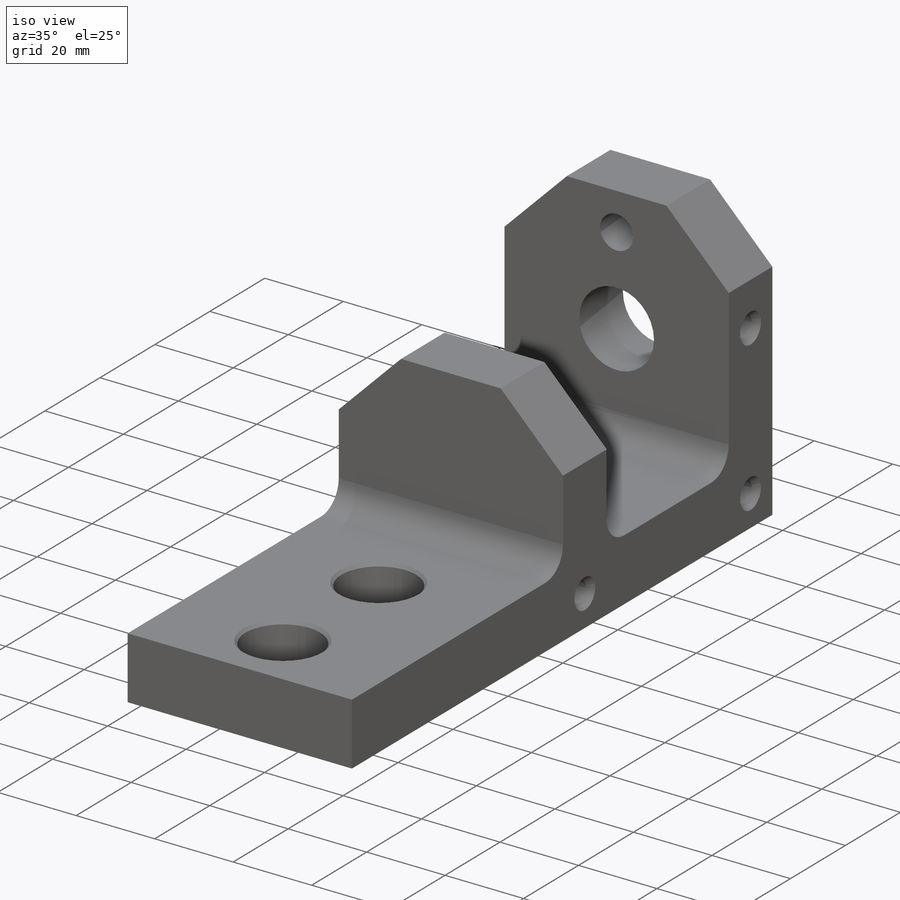
[diagram: iso view]
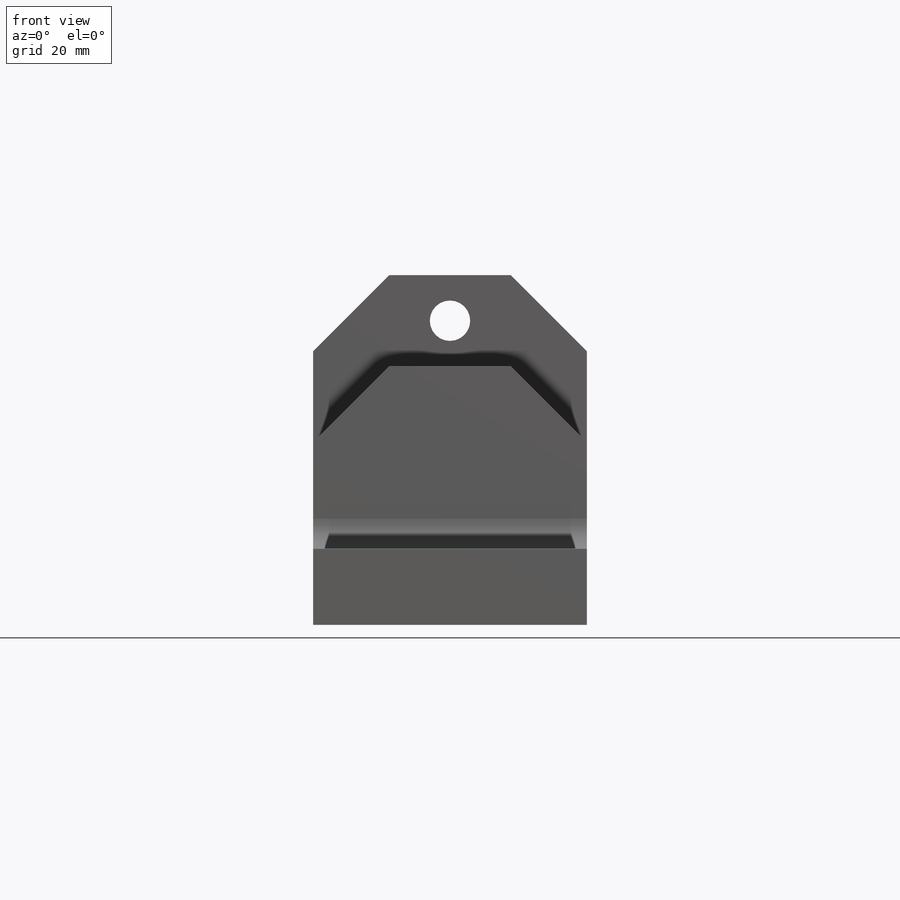
[diagram: front view]
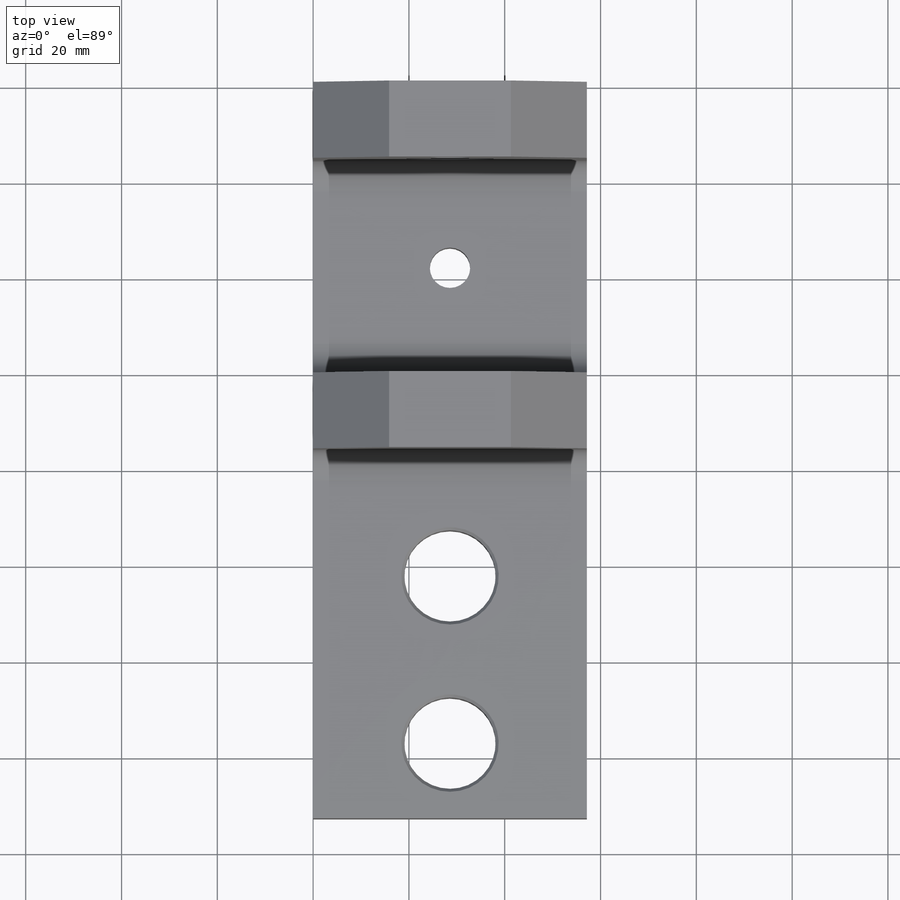
[diagram: top view]
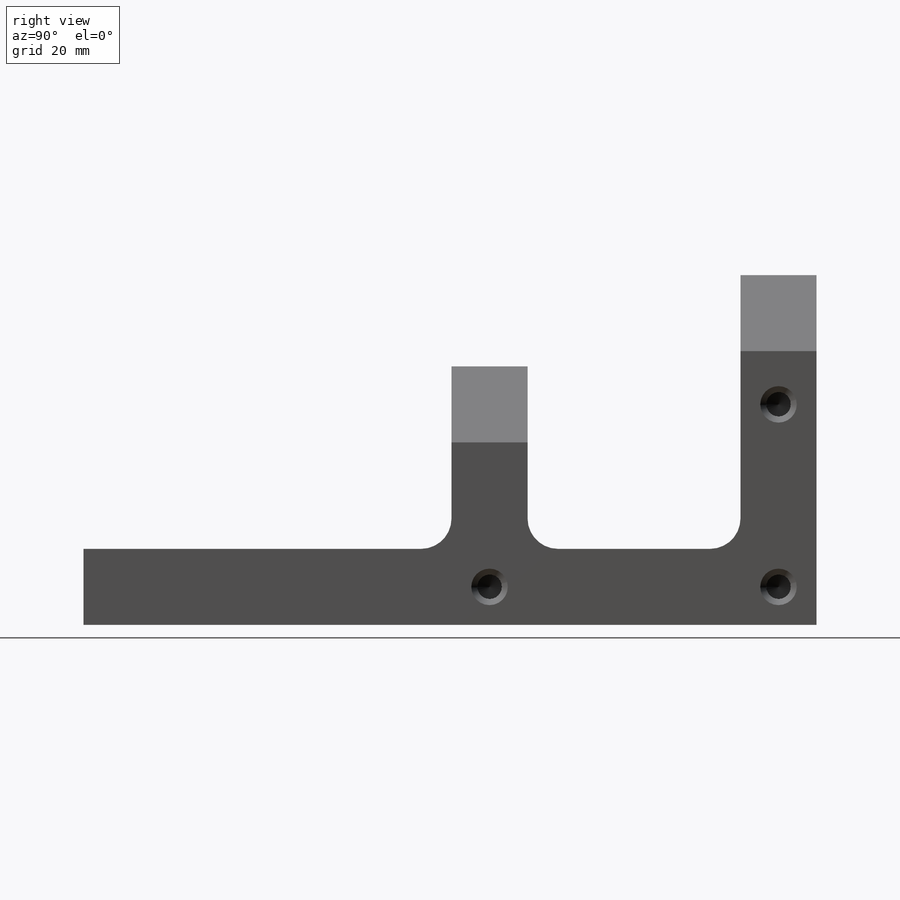
[diagram: right view]
SOLIDWORKS PART (.sldprt)
format: sldprt  version: not decoded by parser v0  size: 479,232 bytes
history: native  units: mm
features: sketch x15, thread x8, hole x5, cut_extrude x3, extrude x2, material x1, fillet x1 + 1 further entry (+13 scaffold rows collapsed)
feature tree (49):
  scaffold x13  (default folders/planes/origin — collapsed)
  material  "AISI 1018 Steel, Cold Rolled"
  "Origin"  ID=-1
  sketch  "Sketch5"  dims[D1=15.875mm D2=76.835mm D3=38.1mm D4=25.4mm]
  extrude  "Extrude4"  Depth=57.15mm
  sketch  "Sketch9"  dims[c1.D1=44.45mm c1.D2=73.025mm c2.D1=44.45mm]
  extrude  "Extrude7"  [1 undecoded]
  sketch  "Sketch10"  dims[D2=19.05mm D1=25.4mm]
  cut_extrude  "Cut-Extrude2"  [1 undecoded]
  hole  "3/8-24 Tapped Hole1"  [1 undecoded]
  sketch  "Sketch12"  dims[D1=22.225mm]
  thread  "Hole Thread1"  Diameter=9.525mm  [1 undecoded]
  sketch  "Sketch11"  dims[hole-wizard template sketch: 54 standard entries collapsed; hole parameters kept: c17.Thru Tap Drill Dia.=8.4328mm c17.Thru Tap Drill Depth=15.875mm c17.Near C'Sink Dia.=10.795mm c17.D4=~3.666174mm c17.Near C'Sink Angle=82.0deg]
  hole  "3/8-24 Tapped Hole2"  [1 undecoded]
  sketch  "Sketch14"  dims[D1=22.225mm]
  thread  "Hole Thread2"  Diameter=9.525mm  [1 undecoded]
  sketch  "Sketch13"  dims[hole-wizard template sketch: 54 standard entries collapsed; hole parameters kept: c17.Thru Tap Drill Dia.=8.4328mm c17.Thru Tap Drill Depth=15.875mm c17.Near C'Sink Dia.=10.795mm c17.D4=~3.666174mm c17.Near C'Sink Angle=82.0deg]
  hole  "1/4-20 Tapped Hole1"  Diameter=5.1054mm Depth=16.51mm
  sketch  "Sketch16"  dims[D1=38.1mm D2=25.4mm]
  sketch  "Sketch15"  dims[hole-wizard template sketch: 40 standard entries collapsed; hole parameters kept: c13.Tap Drill Depth=16.51mm c13.Near C'Sink Dia.=7.62mm c13.D4=~33.297463mm c13.Near C'Sink Angle=82.0deg c14.D5=~14.816244mm c14.Drill Angle=118.0deg]
  thread  "Hole Thread3"  Diameter=12.7mm  [1 undecoded]
  thread  "Hole Thread4"  Diameter=12.7mm  [1 undecoded]
  thread  "Hole Thread5"  Diameter=12.7mm  [1 undecoded]
  hole  "1/4-20 Tapped Hole2"  Diameter=5.1054mm Depth=16.51mm
  sketch  "Sketch18"
  sketch  "Sketch17"  dims[hole-wizard template sketch: 40 standard entries collapsed; hole parameters kept: c13.Tap Drill Depth=16.51mm c13.Near C'Sink Dia.=7.62mm c13.D4=~33.297463mm c13.Near C'Sink Angle=82.0deg c14.D5=~14.816244mm c14.Drill Angle=118.0deg]
  thread  "Hole Thread7"  Diameter=25.4mm  [1 undecoded]
  thread  "Hole Thread8"  Diameter=25.4mm  [1 undecoded]
  thread  "Hole Thread9"  Diameter=25.4mm  [1 undecoded]
  sketch  "Sketch19"  dims[D1=15.875mm]
  cut_extrude  "Cut-Extrude3"  [1 undecoded]
  hole  "1/2 Clearance Hole1"  Diameter=19.05mm Depth=15.875mm
  sketch  "Sketch23"  dims[D1=34.925mm D2=15.6845mm]
  sketch  "Sketch22"  dims[hole-wizard template sketch: 47 standard entries collapsed; hole parameters kept: c15.Thru Hole Depth=15.875mm c15.Near C'Sink Dia.=20.32mm c15.D4=~3.666174mm c15.Near C'Sink Angle=82.0deg c15.Far C'Sink Dia.=20.32mm c15.D6=~9.919017mm c15.Far C'Sink Angle=82.0deg]
  sketch  "Sketch24"
  cut_extrude  "Cut-Extrude4"  [1 undecoded]
  fillet  "Fillet4"  Radius=6.35mm
decode coverage: 26 of 34 modeling features carry decoded parameters; 1 rows unclassified (native names shown)
note: ~ marks probable driven/reference dimensions
note: 14 parameter values undecoded
summary: no parameter record found for 6 features; Diameter pulled from absorbed wizard sketch
note: suppression state not decoded; provenance and decode notes live in map.json
